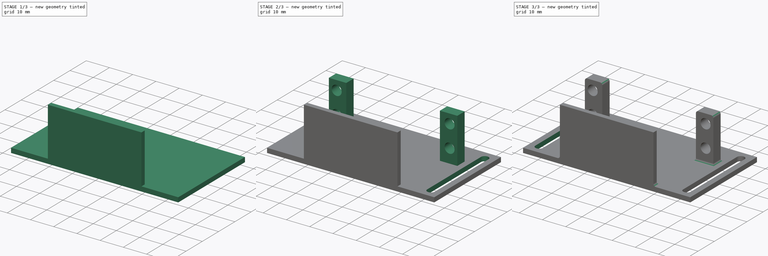
[diagram: build sequence overview — one tinted view per stage of 3, left to right]
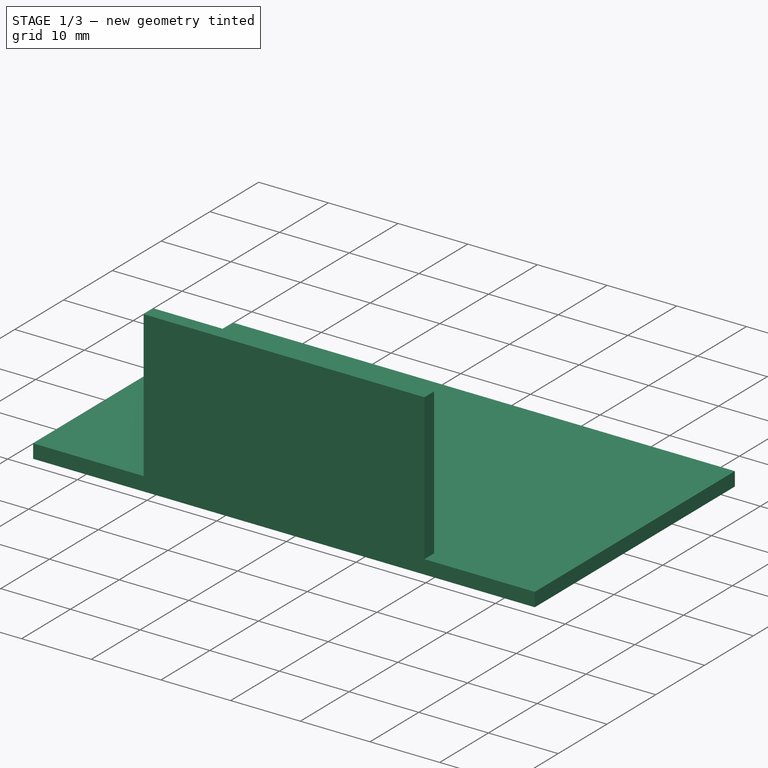
[diagram: stage 1 of 3 — iso view after this stage's code; geometry added in this stage tinted green]
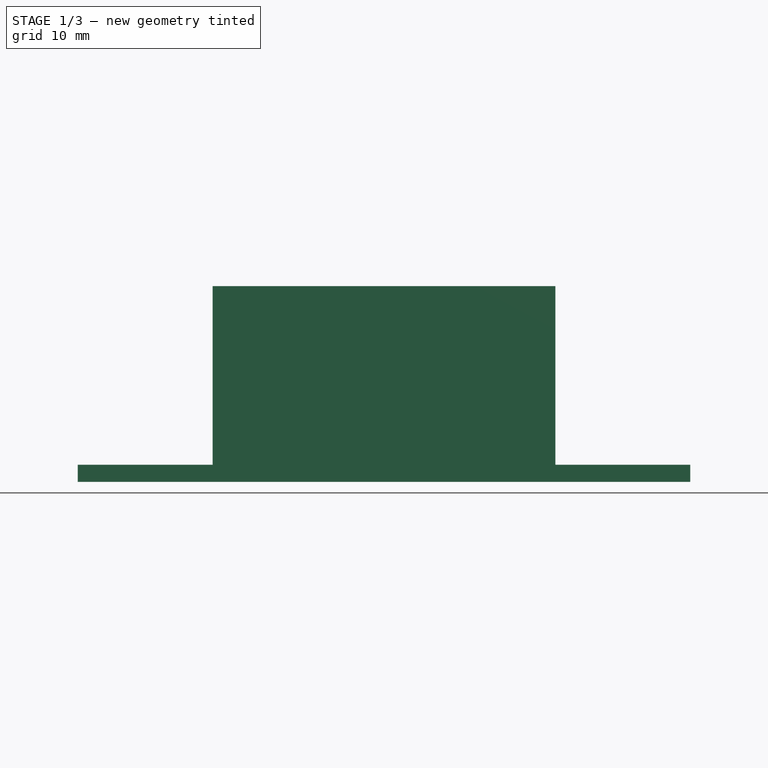
[diagram: stage 1 of 3 — front view after this stage's code; geometry added in this stage tinted green]
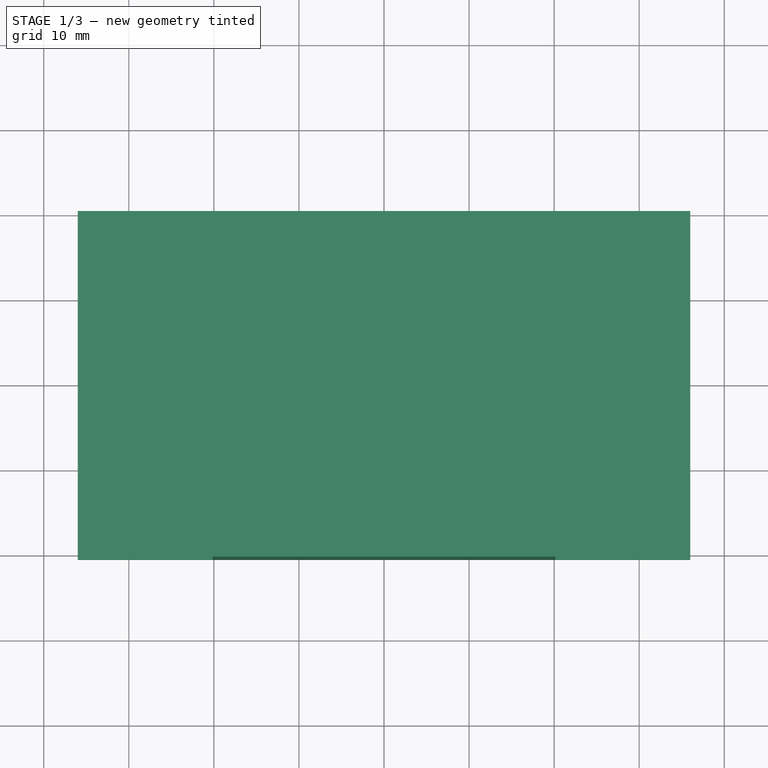
[diagram: stage 1 of 3 — top view after this stage's code; geometry added in this stage tinted green]
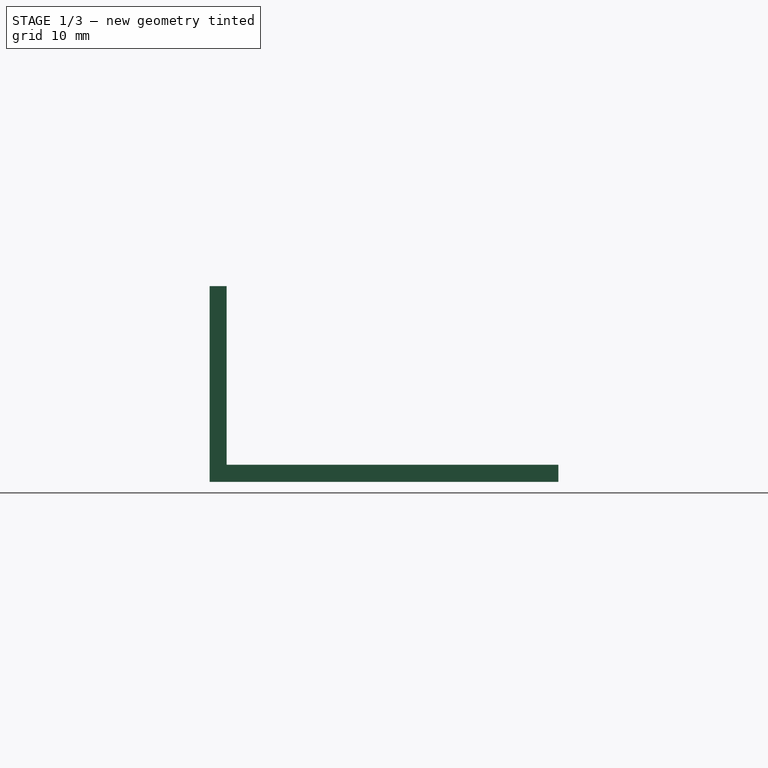
[diagram: stage 1 of 3 — right view after this stage's code; geometry added in this stage tinted green]
FCSTD DOCUMENT  (FreeCAD 1.0R39109 (Git))
Label: servo_base
License: All rights reserved
LicenseURL: http://en.wikipedia.org/wiki/All_rights_reserved
objects: Sketcher::SketchObject×4, PartDesign::Pad×3, PartDesign::Plane×1, PartDesign::Pocket×1, PartDesign::Mirrored×1, PartDesign::Fillet×1, PartDesign::Body×1
note: 27 computed .brp shape members not serialized (recipe doc carries the construction recipe); baked Part::Feature solids carry a one-line shape summary decoded from their .brp

FEATURE [Sketcher::SketchObject] Sketch
  ArcFitTolerance = 1e-06
  AttachmentSupport = -> [XY_Plane]
  FullyConstrained = true
  MakeInternals = false
  MapMode = 5
  sketch-geometry (5):
    g0: LineSegment StartX=-36 StartY=20.5 StartZ=0 EndX=-36 EndY=-20.5 EndZ=0
    g1: LineSegment StartX=-36 StartY=-20.5 StartZ=0 EndX=36 EndY=-20.5 EndZ=0
    g2: LineSegment StartX=36 StartY=-20.5 StartZ=0 EndX=36 EndY=20.5 EndZ=0
    g3: LineSegment StartX=36 StartY=20.5 StartZ=0 EndX=-36 EndY=20.5 EndZ=0
    g4: GeomPoint [constr] X=0 Y=0 Z=0
  constraints (12):
    c: Coincident(g0,g1)
    c: Coincident(g1,g2)
    c: Coincident(g2,g3)
    c: Coincident(g3,g0)
    c: Vertical(g0)
    c: Vertical(g2)
    c: Horizontal(g1)
    c: Horizontal(g3)
    c: Symmetric(g2,g0,g4)
    c: Coincident(g4,g-1)
    c: DistanceX(g3,g3) = 72
    c: DistanceY(g2,g2) = 41
FEATURE [PartDesign::Pad] Pad  label="BasePad"
  Direction = (0,0,1)
  Length = 2
  Length2 = 10
  Profile = -> Sketch
  ReferenceAxis = -> Sketch [N_Axis]
  Refine = true
  Suppressed = false
  Type = 0
FEATURE [Sketcher::SketchObject] Sketch001
  ArcFitTolerance = 1e-06
  AttachmentSupport = -> [Pad]
  ExternalGeometry = -> [Pad]
  FullyConstrained = true
  MakeInternals = false
  MapMode = 5
  Placement = pos=(0,-20.5,0) rot=(1,0,0;1.5708rad)
  sketch-geometry (4):
    g0: LineSegment StartX=-20.15 StartY=23 StartZ=0 EndX=-20.15 EndY=2 EndZ=0
    g1: LineSegment StartX=-20.15 StartY=2 StartZ=0 EndX=20.15 EndY=2 EndZ=0
    g2: LineSegment StartX=20.15 StartY=2 StartZ=0 EndX=20.15 EndY=23 EndZ=0
    g3: LineSegment StartX=20.15 StartY=23 StartZ=0 EndX=-20.15 EndY=23 EndZ=0
  constraints (11):
    c: Coincident(g0,g1)
    c: Coincident(g1,g2)
    c: Coincident(g2,g3)
    c: Coincident(g3,g0)
    c: Vertical(g0)
    c: Vertical(g2)
    c: Horizontal(g1)
    c: PointOnObject(g1,g-3)
    c: DistanceY(g2,g2) = 21
    c: DistanceX(g3,g3) = 40.3
    c: Symmetric(g0,g2,g-2)
FEATURE [PartDesign::Pad] Pad001  label="ServoReinforcementPad"
  BaseFeature = -> Pad
  Direction = (0,-1,2e-16)
  Length = 2
  Length2 = 10
  Profile = -> Sketch001
  ReferenceAxis = -> Sketch001 [N_Axis]
  Refine = true
  Reversed = true
  Suppressed = false
  Type = 0
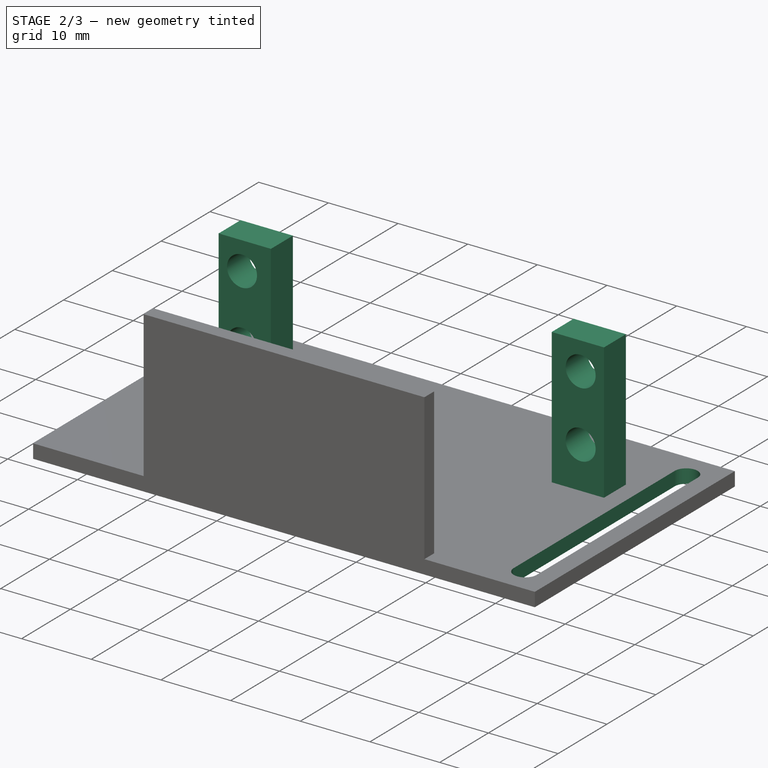
[diagram: stage 2 of 3 — iso view after this stage's code; geometry added in this stage tinted green]
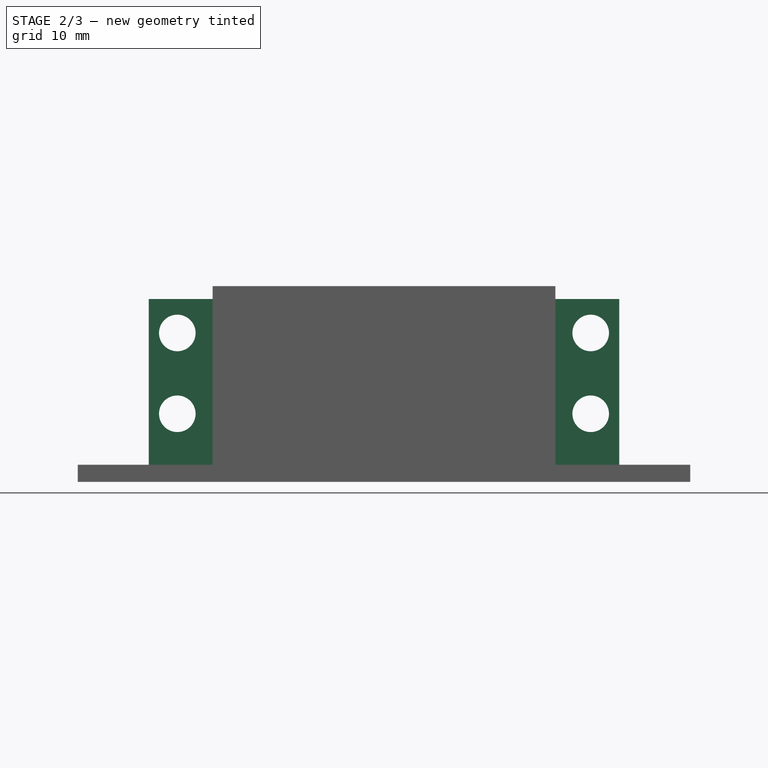
[diagram: stage 2 of 3 — front view after this stage's code; geometry added in this stage tinted green]
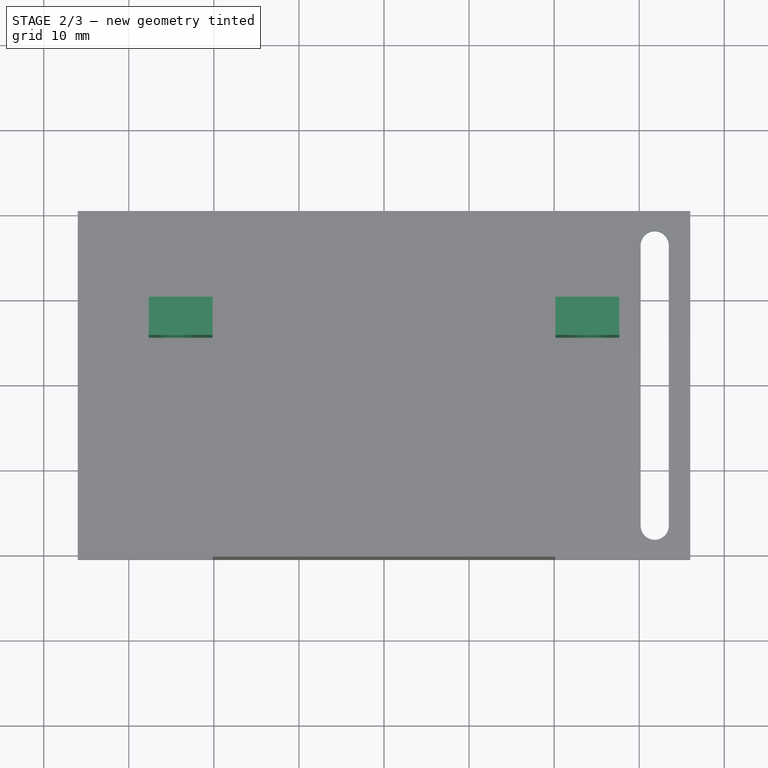
[diagram: stage 2 of 3 — top view after this stage's code; geometry added in this stage tinted green]
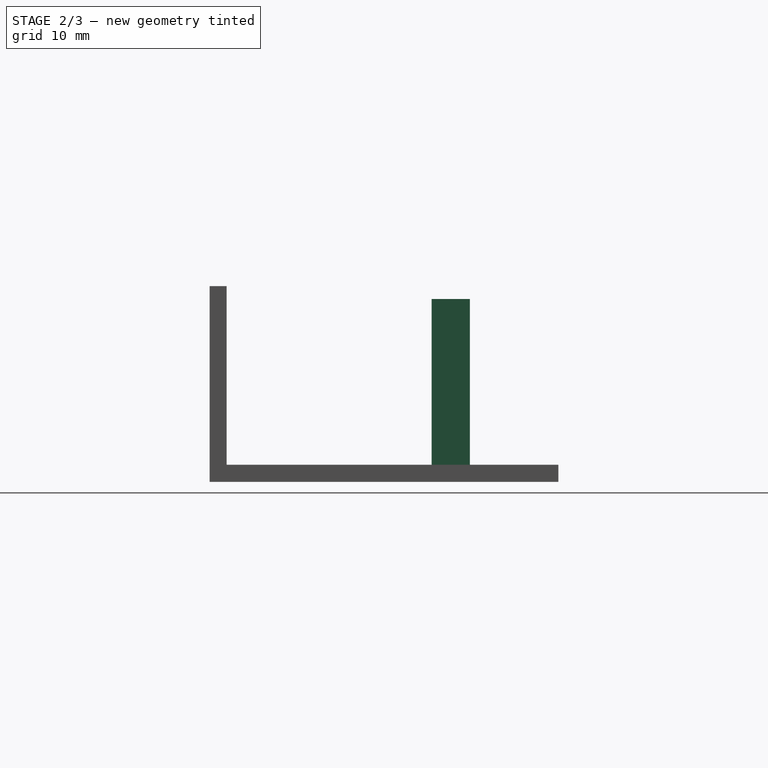
[diagram: stage 2 of 3 — right view after this stage's code; geometry added in this stage tinted green]
FEATURE [PartDesign::Plane] DatumPlane  label="PlaneforScrewReference"
  AttachmentOffset = pos=(0,0,26.6) rot=(0,0,1;0rad)
  AttachmentSupport = -> [Pad001]
  Length = 84
  MapMode = 5
  Placement = pos=(0,8.1,-5.9e-15) rot=(0,0.707107,0.707107;3.14159rad)
  ResizeMode = 0
  Width = 62
FEATURE [Sketcher::SketchObject] Sketch002
  ArcFitTolerance = 1e-06
  AttachmentSupport = -> [DatumPlane]
  ExternalGeometry = -> [Pad001]
  FullyConstrained = true
  MakeInternals = false
  MapMode = 5
  Placement = pos=(0,8.1,-5.9e-15) rot=(0,0.707107,0.707107;3.14159rad)
  sketch-geometry (12):
    g0: Circle CenterX=-24.3 CenterY=17.5 CenterZ=0 NormalX=0 NormalY=0 NormalZ=1 AngleXU=0 Radius=2.15
    g1: Circle CenterX=-24.3 CenterY=8 CenterZ=0 NormalX=0 NormalY=0 NormalZ=1 AngleXU=0 Radius=2.15
    g2: Circle CenterX=24.3 CenterY=17.5 CenterZ=0 NormalX=0 NormalY=0 NormalZ=1 AngleXU=0 Radius=2.15
    g3: Circle CenterX=24.3 CenterY=8 CenterZ=0 NormalX=0 NormalY=0 NormalZ=1 AngleXU=0 Radius=2.15
    g4: LineSegment StartX=20.15 StartY=21.5 StartZ=0 EndX=20.15 EndY=2 EndZ=0
    g5: LineSegment StartX=20.15 StartY=2 StartZ=0 EndX=27.65 EndY=2 EndZ=0
    g6: LineSegment StartX=27.65 StartY=2 StartZ=0 EndX=27.65 EndY=21.5 EndZ=0
    g7: LineSegment StartX=27.65 StartY=21.5 StartZ=0 EndX=20.15 EndY=21.5 EndZ=0
    g8: LineSegment StartX=-27.65 StartY=21.5 StartZ=0 EndX=-27.65 EndY=2 EndZ=0
    g9: LineSegment StartX=-27.65 StartY=2 StartZ=0 EndX=-20.15 EndY=2 EndZ=0
    g10: LineSegment StartX=-20.15 StartY=2 StartZ=0 EndX=-20.15 EndY=21.5 EndZ=0
    g11: LineSegment StartX=-20.15 StartY=21.5 StartZ=0 EndX=-27.65 EndY=21.5 EndZ=0
  constraints (33):
    c: Horizontal(g3,g1)
    c: Vertical(g0,g1)
    c: Vertical(g3,g2)
    c: Radius(g2) = 2.15
    c: DistanceY(g3,g2) = 9.5
    c: DistanceX(g0,g2) = 48.6
    c: Equal(g0,g1)
    c: Equal(g1,g3)
    c: Equal(g3,g2)
    c: Coincident(g4,g5)
    c: Coincident(g5,g6)
    c: Coincident(g6,g7)
    c: Coincident(g7,g4)
    c: Vertical(g4)
    c: Vertical(g6)
    c: Horizontal(g5)
    c: Horizontal(g7)
    c: DistanceX(g7,g7) = 7.5
    c: DistanceY(g5,g3) = 6
    c: Coincident(g-5,g4)
    c: Coincident(g8,g9)
    c: Coincident(g9,g10)
    c: Coincident(g10,g11)
    c: Coincident(g11,g8)
    c: Vertical(g8)
    c: Vertical(g10)
    c: Horizontal(g9)
    c: Horizontal(g11)
    c: Coincident(g9,g-4)
    c: Equal(g11,g7)
    c: Horizontal(g4,g10)
    c: Symmetric(g2,g0,g-2)
    c: DistanceY(g0,g8) = 4
FEATURE [PartDesign::Pad] Pad002  label="ScrewMountPad"
  BaseFeature = -> Pad001
  Direction = (0,1,-2e-16)
  Length = 2.5
  Length2 = 2
  Profile = -> Sketch002
  ReferenceAxis = -> Sketch002 [N_Axis]
  Refine = true
  Reversed = true
  Suppressed = false
  Type = 4
FEATURE [Sketcher::SketchObject] Sketch003
  ArcFitTolerance = 1e-06
  AttachmentSupport = -> [Pad002]
  ExternalGeometry = -> [Pad002]
  FullyConstrained = true
  MakeInternals = false
  MapMode = 5
  Placement = pos=(0,0,2) rot=(0,0,1;0rad)
  sketch-geometry (6):
    g0: ArcOfCircle CenterX=31.825 CenterY=16.5 CenterZ=0 NormalX=0 NormalY=0 NormalZ=1 AngleXU=0 Radius=1.65 StartAngle=7e-16 EndAngle=3.14159
    g1: ArcOfCircle CenterX=31.825 CenterY=-16.5 CenterZ=0 NormalX=0 NormalY=0 NormalZ=1 AngleXU=0 Radius=1.65 StartAngle=3.14159 EndAngle=6.28319
    g2: LineSegment StartX=33.475 StartY=16.5 StartZ=0 EndX=33.475 EndY=-16.5 EndZ=0
    g3: LineSegment StartX=30.175 StartY=16.5 StartZ=0 EndX=30.175 EndY=-16.5 EndZ=0
    g4: LineSegment [constr] StartX=27.65 StartY=10.1 StartZ=0 EndX=36 EndY=10.1 EndZ=0
    g5: GeomPoint [constr] X=31.825 Y=10.1 Z=0
  constraints (15):
    c: Tangent(g0,g2) = 1.5708
    c: Tangent(g0,g3) = -1.5708
    c: Tangent(g1,g2) = 1.5708
    c: Tangent(g1,g3) = -1.5708
    c: Equal(g0,g1)
    c: Vertical(g2)
    c: Radius(g1) = 1.65
    c: DistanceY(g-3,g1) = 4
    c: DistanceY(g0,g-3) = 4
    c: Coincident(g4,g-4)
    c: PointOnObject(g4,g-3)
    c: Horizontal(g4)
    c: Symmetric(g4,g4,g5)
    c: Vertical(g5,g0)
    c: DistanceX(g0,g-3) = 2.525
FEATURE [PartDesign::Pocket] Pocket  label="ScrewEllipsePocket"
  BaseFeature = -> Pad002
  Direction = (0,0,-1)
  Length = 5
  Length2 = 5
  Profile = -> Sketch003
  ReferenceAxis = -> Sketch003 [N_Axis]
  Refine = true
  Suppressed = false
  Type = 1
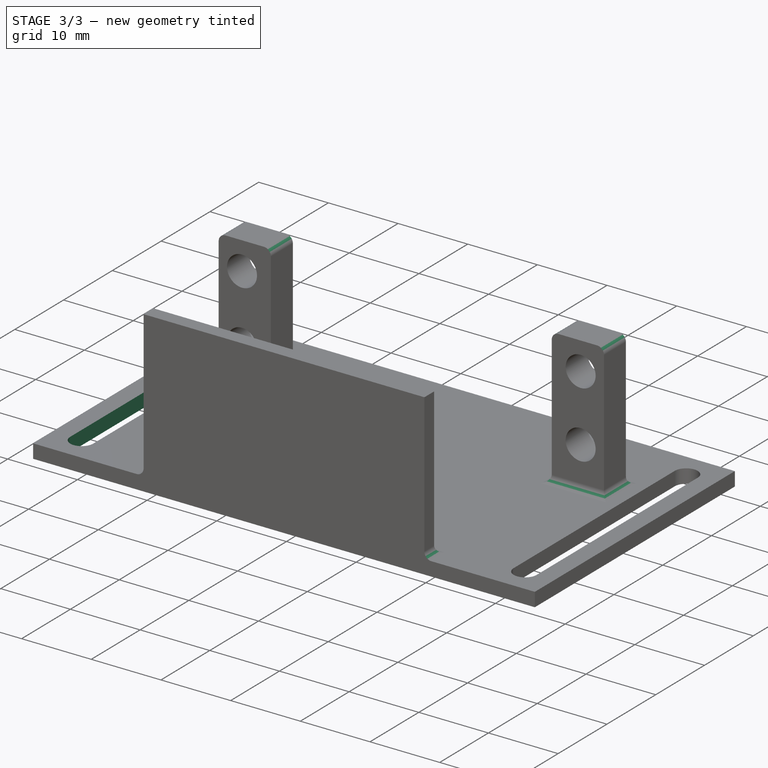
[diagram: stage 3 of 3 — iso view after this stage's code; geometry added in this stage tinted green]
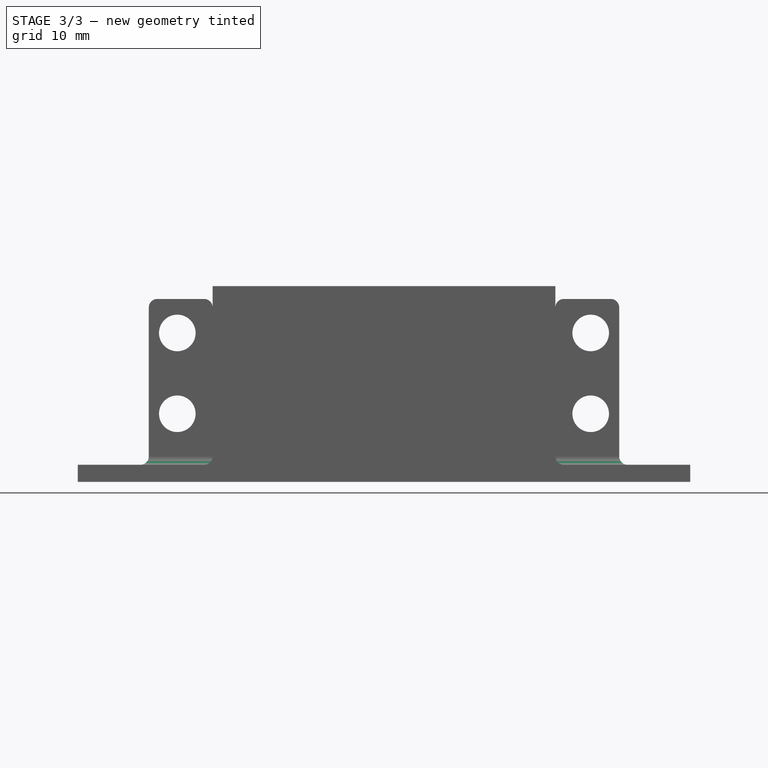
[diagram: stage 3 of 3 — front view after this stage's code; geometry added in this stage tinted green]
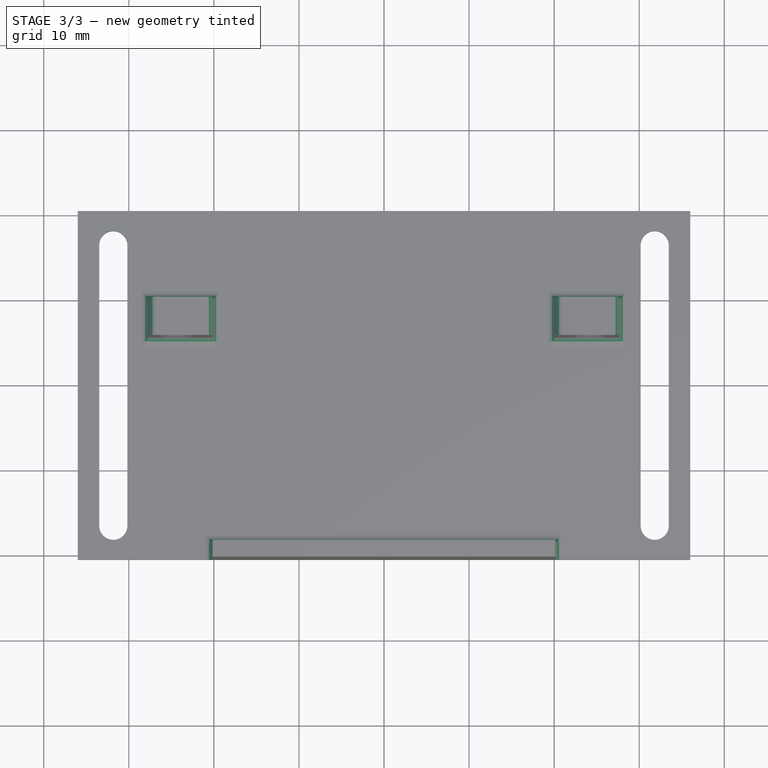
[diagram: stage 3 of 3 — top view after this stage's code; geometry added in this stage tinted green]
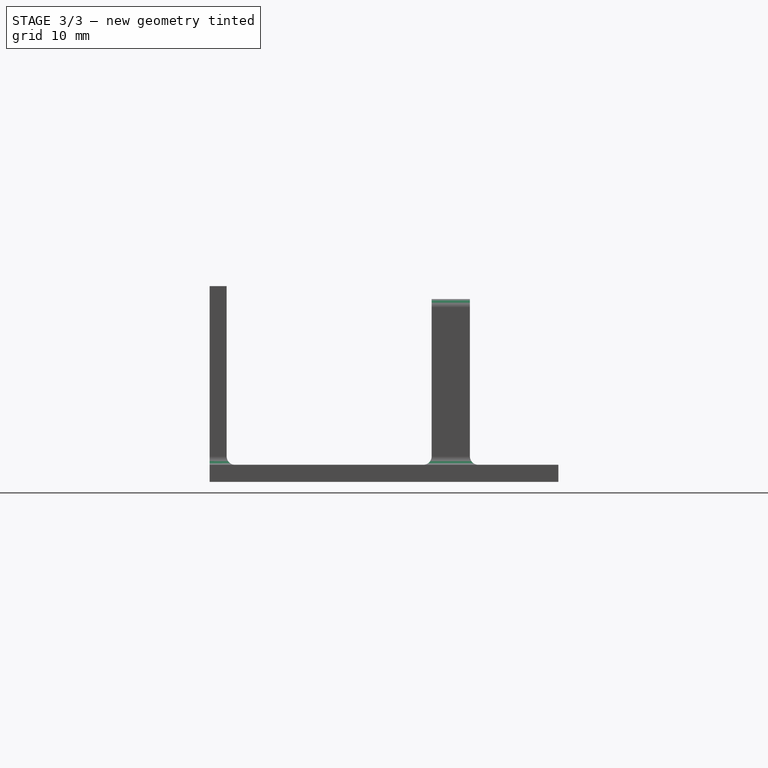
[diagram: stage 3 of 3 — right view after this stage's code; geometry added in this stage tinted green]
FEATURE [PartDesign::Mirrored] Mirrored  label="ScrewEllipsePocketMirror"
  BaseFeature = -> Pocket
  MirrorPlane = -> YZ_Plane
  Originals = -> [Pocket]
  Refine = true
  Suppressed = false
  TransformMode = 0
FEATURE [PartDesign::Fillet] Fillet  label="ReinforceFillets"
  Base = -> Mirrored [Edge36,Edge37,Edge39,Edge38,Edge57,Edge68,Edge80,Edge69,Edge40,Edge41,Edge42,Edge43,Edge25,Edge27,Edge26]
  BaseFeature = -> Mirrored
  Radius = 1
  Refine = true
  SupportTransform = false
  Suppressed = false
  UseAllEdges = false
FEATURE [PartDesign::Body] Body  label="servo_base"
  AllowCompound = false
  Group = -> [Sketch,Pad,Sketch001,Pad001,DatumPlane,Sketch002,Pad002,Sketch003,Pocket,Mirrored,Fillet]
  Origin = -> Origin
  Tip = -> Fillet
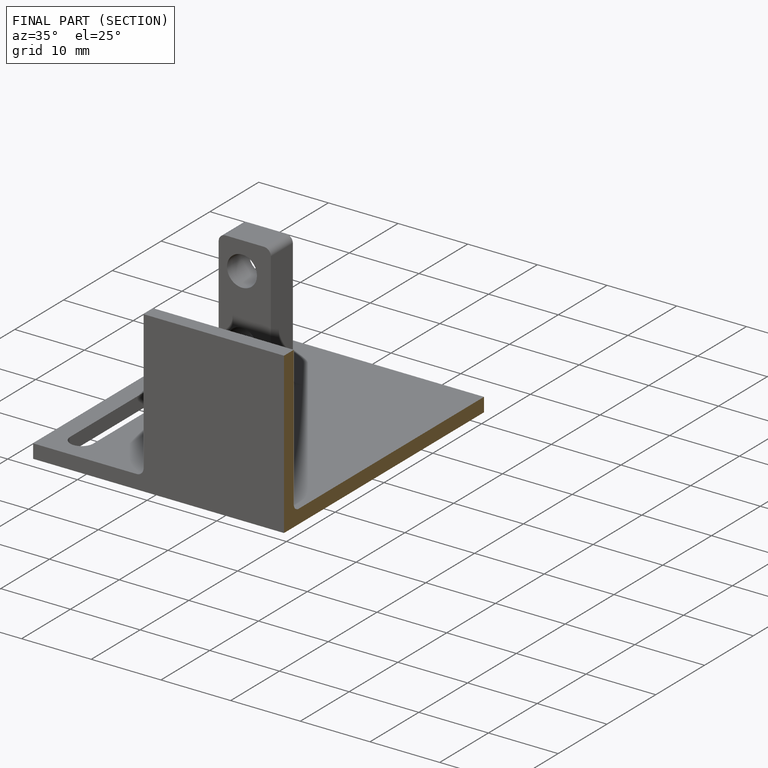
[diagram: finished part — half-section view (interior)]
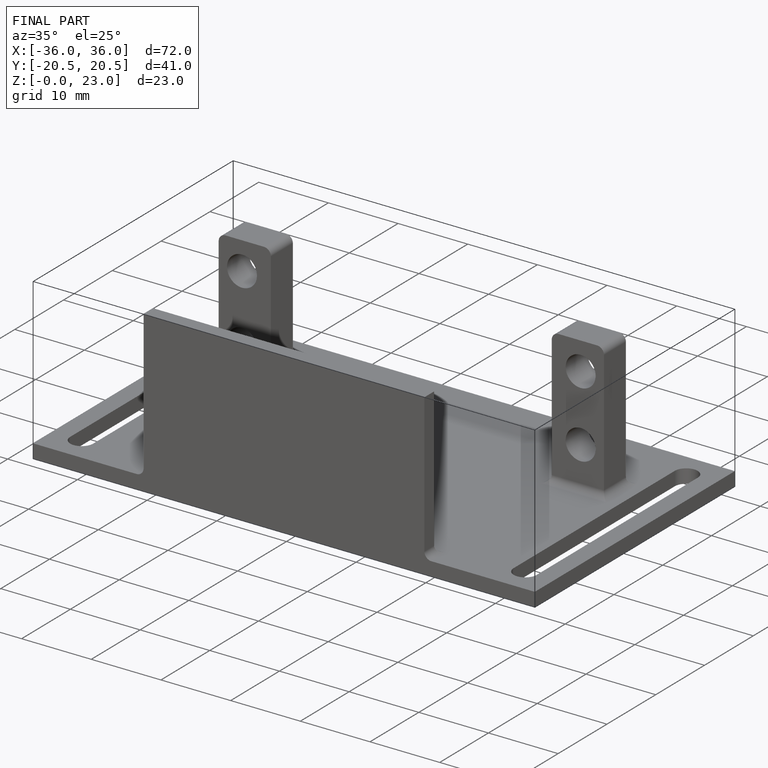
[diagram: finished part — iso view with bounding-box wireframe]
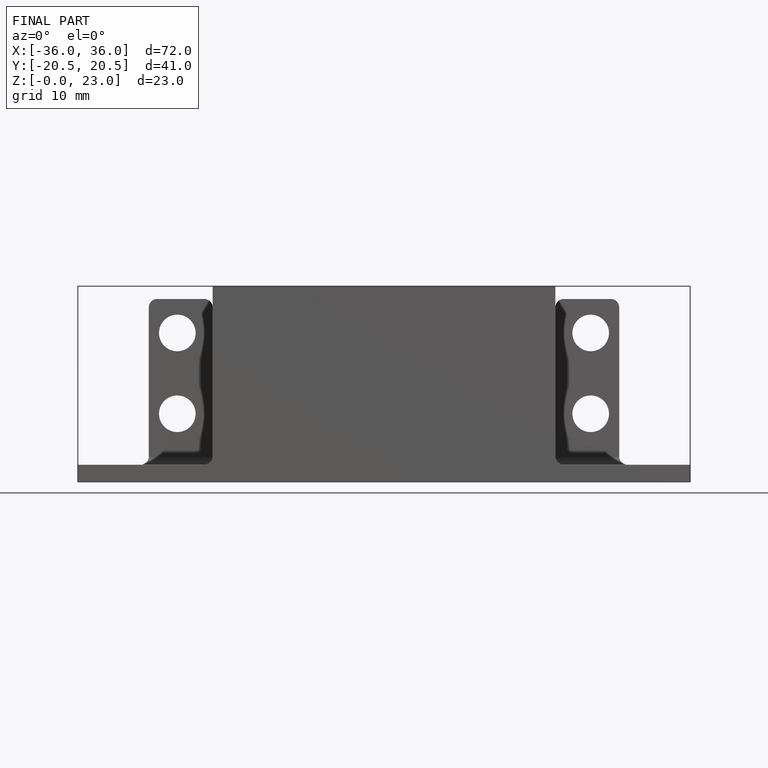
[diagram: finished part — front view with bounding-box wireframe]
